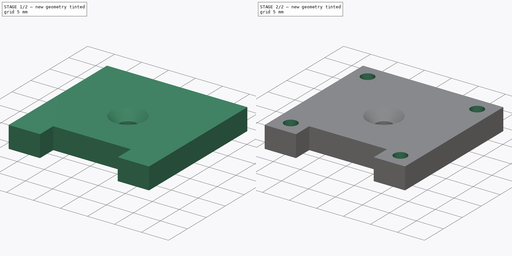
[diagram: build sequence overview — one tinted view per stage of 2, left to right]
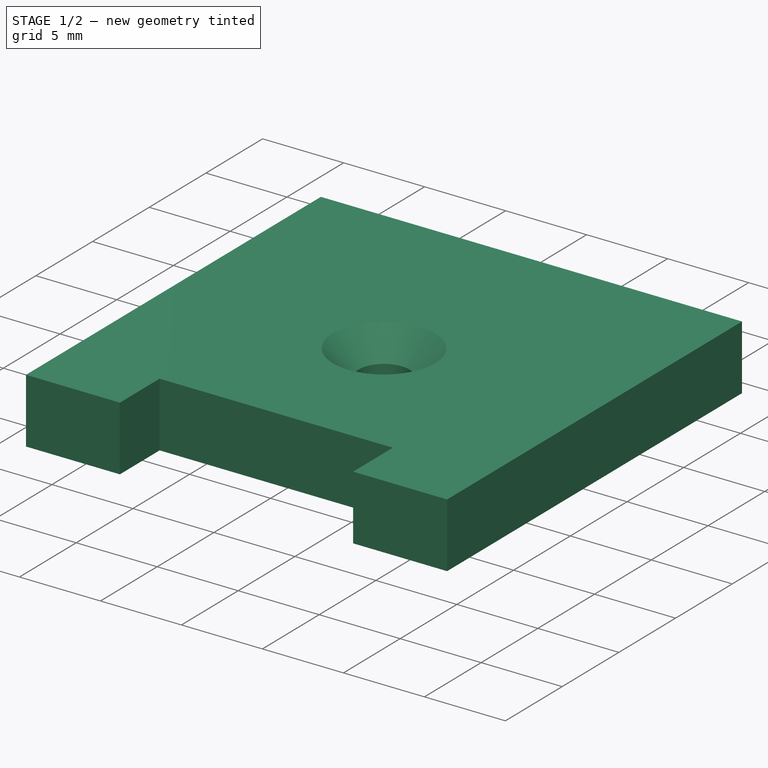
[diagram: stage 1 of 2 — iso view after this stage's code; geometry added in this stage tinted green]
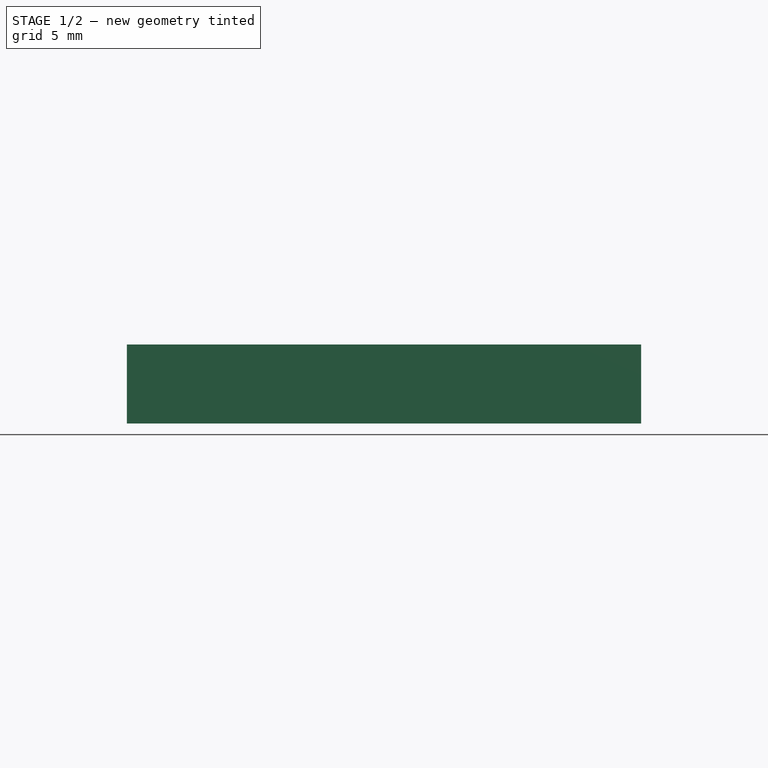
[diagram: stage 1 of 2 — front view after this stage's code; geometry added in this stage tinted green]
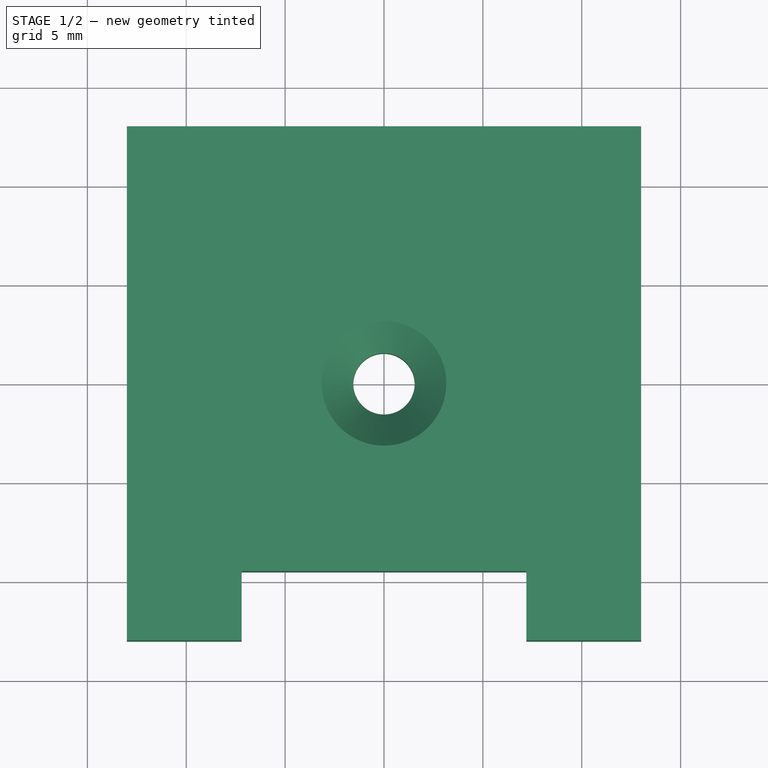
[diagram: stage 1 of 2 — top view after this stage's code; geometry added in this stage tinted green]
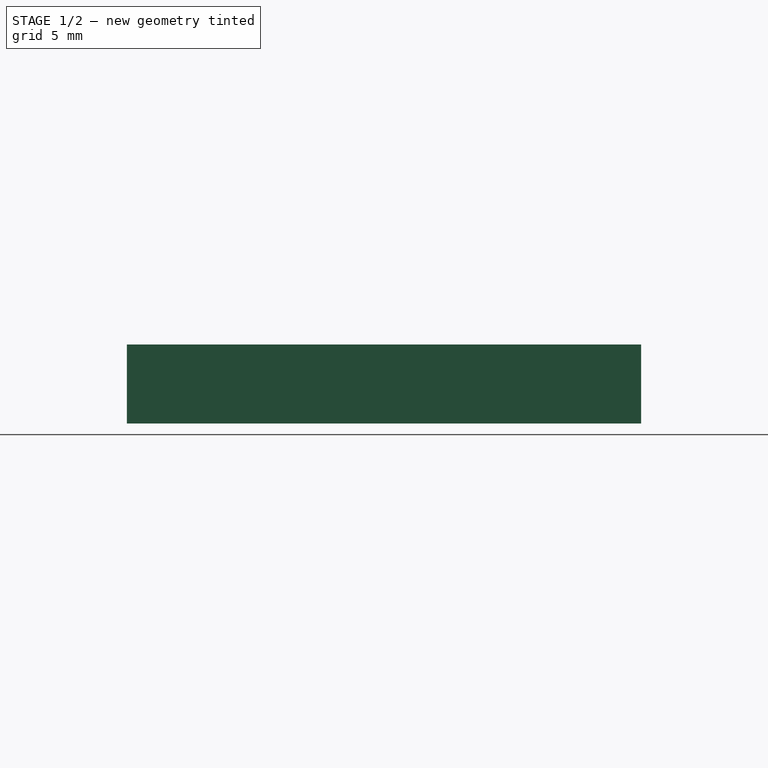
[diagram: stage 1 of 2 — right view after this stage's code; geometry added in this stage tinted green]
FCSTD DOCUMENT  (FreeCAD 0.19R24212 (Git))
Label: qwiic-mount
License: All rights reserved
LicenseURL: http://en.wikipedia.org/wiki/All_rights_reserved
objects: Sketcher::SketchObject×3, PartDesign::Hole×2, PartDesign::Pad×1, PartDesign::Body×1
note: 10 computed .brp shape members not serialized (recipe doc carries the construction recipe); baked Part::Feature solids carry a one-line shape summary decoded from their .brp

FEATURE [Sketcher::SketchObject] Sketch
  FullyConstrained = true
  MapMode = 5
  Support = -> [XY_Plane]
  sketch-geometry (8):
    g0: LineSegment StartX=-13 StartY=-13 StartZ=0 EndX=-13 EndY=13 EndZ=0
    g1: LineSegment StartX=-13 StartY=13 StartZ=0 EndX=13 EndY=13 EndZ=0
    g2: LineSegment StartX=13 StartY=13 StartZ=0 EndX=13 EndY=-13 EndZ=0
    g3: LineSegment StartX=-13 StartY=-13 StartZ=0 EndX=-7.2 EndY=-13 EndZ=0
    g4: LineSegment StartX=-7.2 StartY=-13 StartZ=0 EndX=-7.2 EndY=-9.5 EndZ=0
    g5: LineSegment StartX=-7.2 StartY=-9.5 StartZ=0 EndX=7.2 EndY=-9.5 EndZ=0
    g6: LineSegment StartX=7.2 StartY=-9.5 StartZ=0 EndX=7.2 EndY=-13 EndZ=0
    g7: LineSegment StartX=7.2 StartY=-13 StartZ=0 EndX=13 EndY=-13 EndZ=0
  constraints (23):
    c: Vertical(g0)
    c: Horizontal(g1)
    c: Vertical(g2)
    c: Coincident(g3,g0)
    c: Horizontal(g3)
    c: Vertical(g4)
    c: Horizontal(g5)
    c: Vertical(g6)
    c: Coincident(g7,g2)
    c: Horizontal(g7)
    c: Symmetric(g0,g1,g-1)
    c: Coincident(g4,g3)
    c: Coincident(g1,g0)
    c: Coincident(g1,g2)
    c: Coincident(g5,g4)
    c: Coincident(g6,g7)
    c: Coincident(g6,g5)
    c: Equal(g0,g1)
    c: Equal(g1,g2)
    c: Equal(g3,g7)
    c: DistanceX(g1,g1) = 26
    c: DistanceX(g3,g3) = 5.8
    c: DistanceY(g6,g6) = 3.5
FEATURE [PartDesign::Pad] Pad  label="plate"
  Direction = (1,1,1)
  Length = 4
  Length2 = 100
  Profile = -> Sketch
  Reversed = true
  Type = 0
FEATURE [Sketcher::SketchObject] Sketch001
  FullyConstrained = true
  MapMode = 5
  Support = -> [XY_Plane]
  sketch-geometry (1):
    g0: Circle CenterX=0 CenterY=0 CenterZ=0 NormalX=0 NormalY=0 NormalZ=1 AngleXU=0 Radius=1.55
  constraints (2):
    c: Coincident(g0,g-1)
    c: Diameter(g0) = 3.1
FEATURE [PartDesign::Hole] Hole  label="mount hole"
  BaseFeature = -> Pad
  Depth = 25
  DepthType = 1
  Diameter = 3.1
  DrillForDepth = false
  DrillPoint = 1
  DrillPointAngle = 118
  HoleCutCountersinkAngle = 90
  HoleCutCustomValues = false
  HoleCutDepth = 0
  HoleCutDiameter = 6.3
  HoleCutType = 2
  ModelActualThread = false
  Profile = -> Sketch001
  Tapered = false
  TaperedAngle = 90
  ThreadAngle = 0
  ThreadClass = 0
  ThreadCutOffInner = 0
  ThreadCutOffOuter = 0
  ThreadDirection = 0
  ThreadFit = 0
  ThreadPitch = 0
  ThreadSize = 0
  ThreadType = 0
  Threaded = false
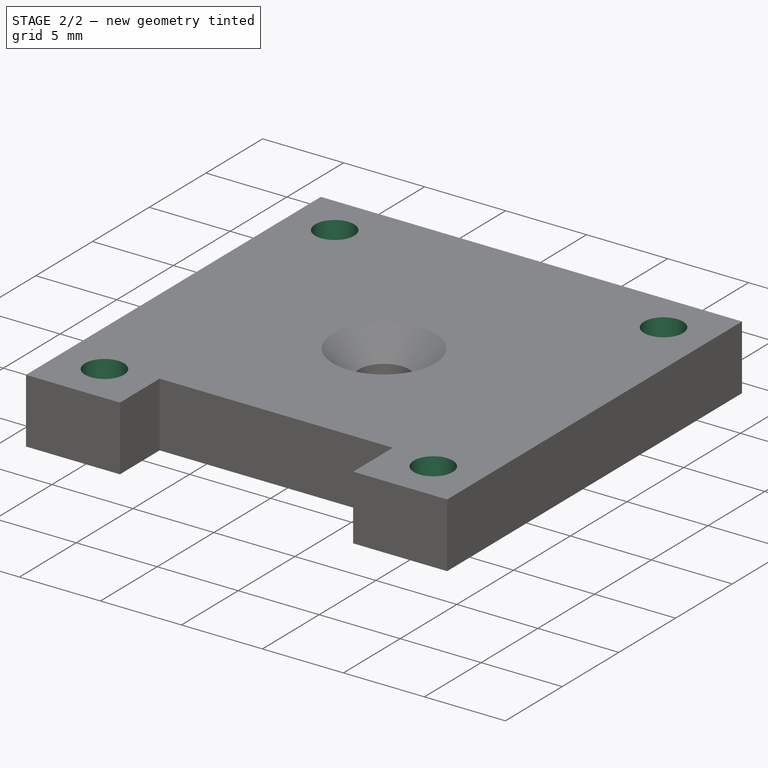
[diagram: stage 2 of 2 — iso view after this stage's code; geometry added in this stage tinted green]
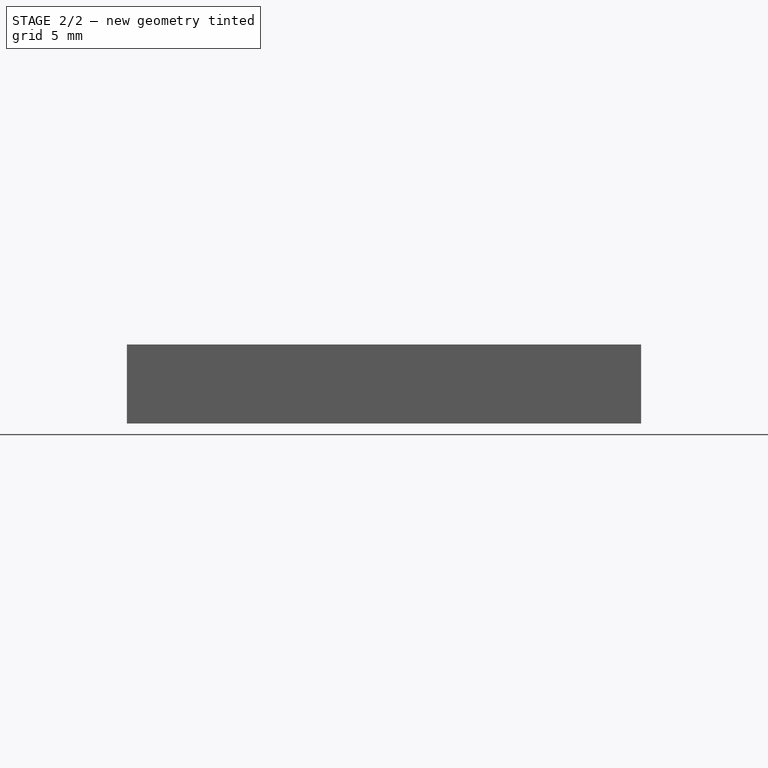
[diagram: stage 2 of 2 — front view after this stage's code; geometry added in this stage tinted green]
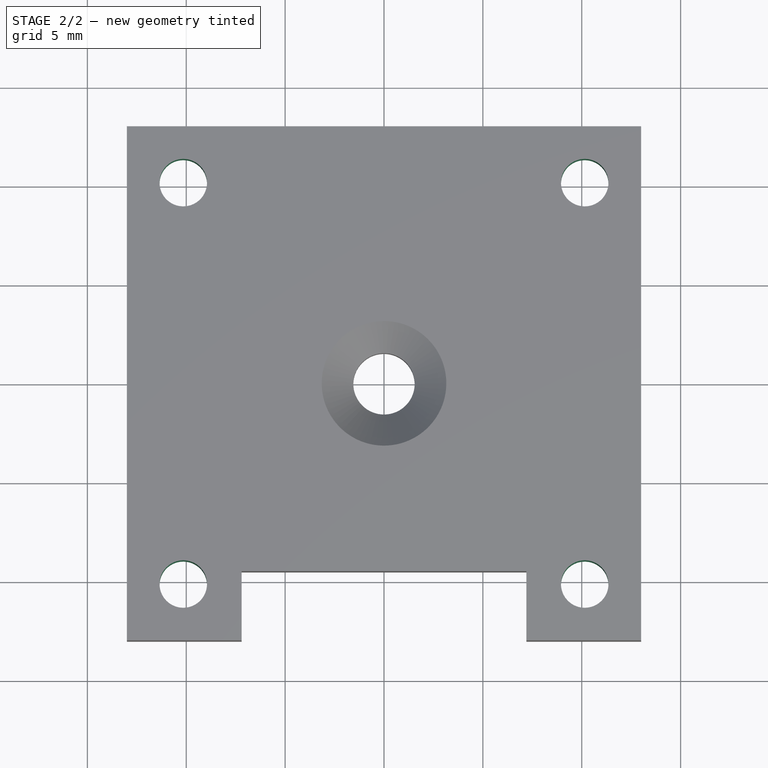
[diagram: stage 2 of 2 — top view after this stage's code; geometry added in this stage tinted green]
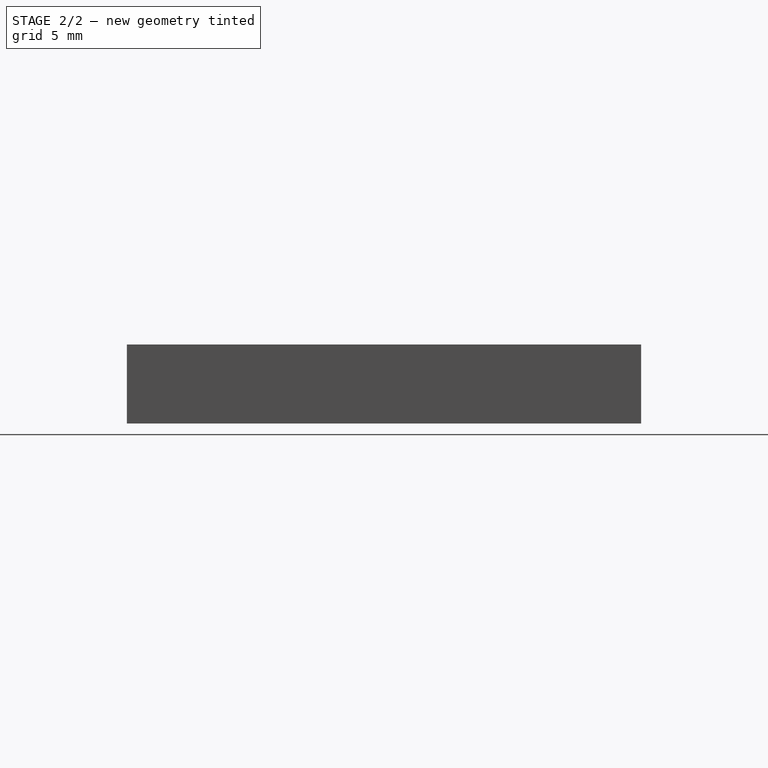
[diagram: stage 2 of 2 — right view after this stage's code; geometry added in this stage tinted green]
FEATURE [Sketcher::SketchObject] Sketch002
  FullyConstrained = true
  MapMode = 5
  Support = -> [XY_Plane]
  sketch-geometry (8):
    g0: LineSegment StartX=-10.15 StartY=-10.15 StartZ=0 EndX=10.15 EndY=-10.15 EndZ=0
    g1: LineSegment StartX=10.15 StartY=-10.15 StartZ=0 EndX=10.15 EndY=10.15 EndZ=0
    g2: LineSegment StartX=10.15 StartY=10.15 StartZ=0 EndX=-10.15 EndY=10.15 EndZ=0
    g3: LineSegment StartX=-10.15 StartY=10.15 StartZ=0 EndX=-10.15 EndY=-10.15 EndZ=0
    g4: Circle CenterX=-10.15 CenterY=10.15 CenterZ=0 NormalX=0 NormalY=0 NormalZ=1 AngleXU=0 Radius=1.2
    g5: Circle CenterX=10.15 CenterY=10.15 CenterZ=0 NormalX=0 NormalY=0 NormalZ=1 AngleXU=0 Radius=1.2
    g6: Circle CenterX=10.15 CenterY=-10.15 CenterZ=0 NormalX=0 NormalY=0 NormalZ=1 AngleXU=0 Radius=1.2
    g7: Circle CenterX=-10.15 CenterY=-10.15 CenterZ=0 NormalX=0 NormalY=0 NormalZ=1 AngleXU=0 Radius=1.2
  constraints (19):
    c: Coincident(g0,g1)
    c: Coincident(g1,g2)
    c: Coincident(g2,g3)
    c: Coincident(g3,g0)
    c: Horizontal(g0)
    c: Horizontal(g2)
    c: Vertical(g1)
    c: Vertical(g3)
    c: Symmetric(g0,g1,g-1)
    c: Equal(g3,g2)
    c: DistanceX(g2,g2) = 20.3
    c: Coincident(g4,g2)
    c: Coincident(g5,g1)
    c: Coincident(g6,g0)
    c: Coincident(g7,g0)
    c: Equal(g7,g4)
    c: Equal(g4,g5)
    c: Equal(g5,g6)
    c: Diameter(g4) = 2.4
FEATURE [PartDesign::Hole] Hole001  label="qwiic holes"
  BaseFeature = -> Hole
  Depth = 25
  DepthType = 1
  Diameter = 2.4
  DrillForDepth = false
  DrillPoint = 1
  DrillPointAngle = 118
  HoleCutCountersinkAngle = 90
  HoleCutCustomValues = false
  HoleCutDepth = 0
  HoleCutDiameter = 6.1
  HoleCutType = 0
  ModelActualThread = false
  Profile = -> Sketch002
  Tapered = false
  TaperedAngle = 90
  ThreadAngle = 0
  ThreadClass = 0
  ThreadCutOffInner = 0
  ThreadCutOffOuter = 0
  ThreadDirection = 0
  ThreadFit = 0
  ThreadPitch = 0
  ThreadSize = 0
  ThreadType = 0
  Threaded = false
FEATURE [PartDesign::Body] Body
  Group = -> [Sketch,Pad,Sketch001,Hole,Sketch002,Hole001]
  Origin = -> Origin
  Tip = -> Hole001
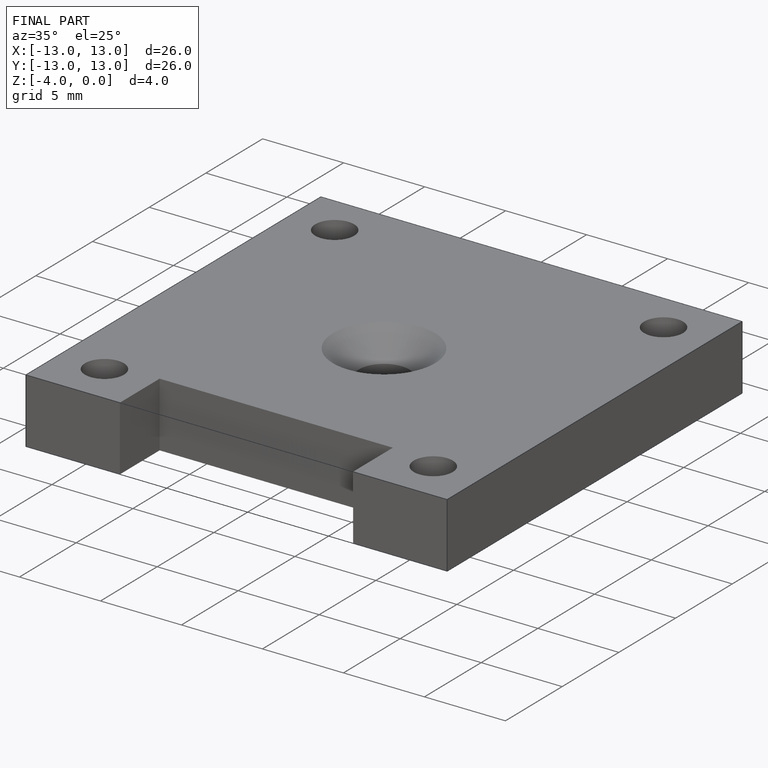
[diagram: finished part — iso view with bounding-box wireframe]
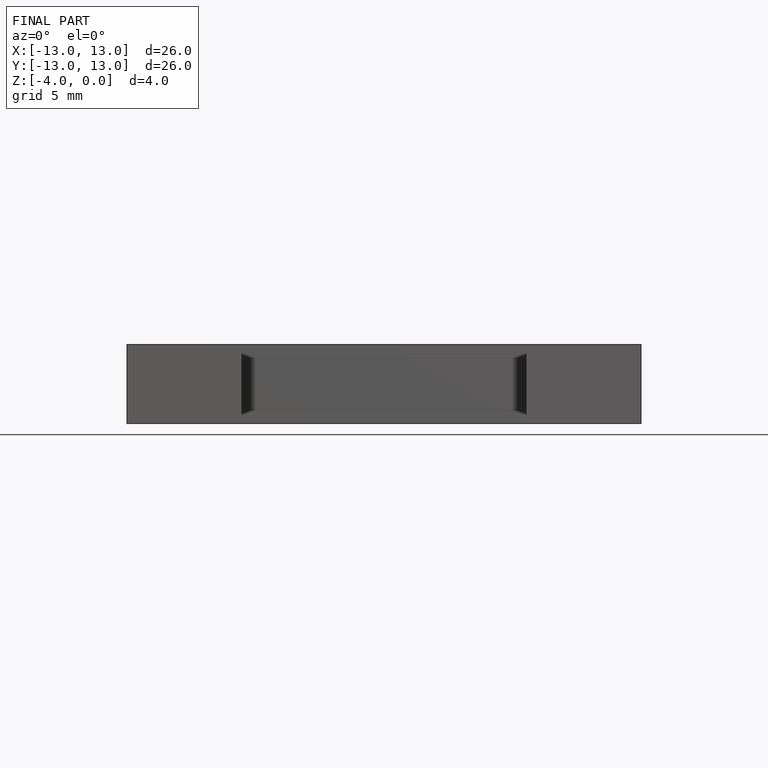
[diagram: finished part — front view with bounding-box wireframe]
